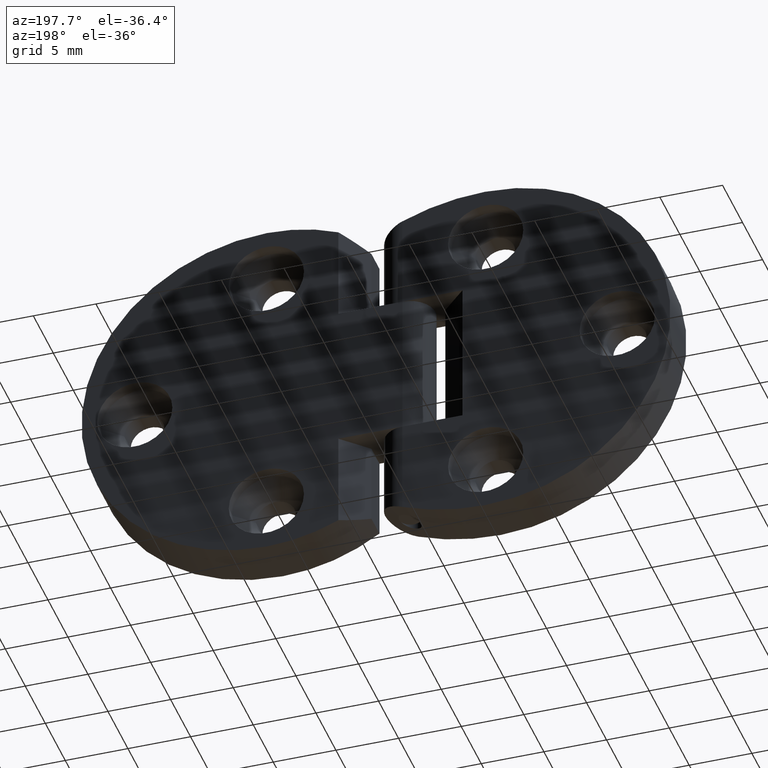
[diagram: clean part render]
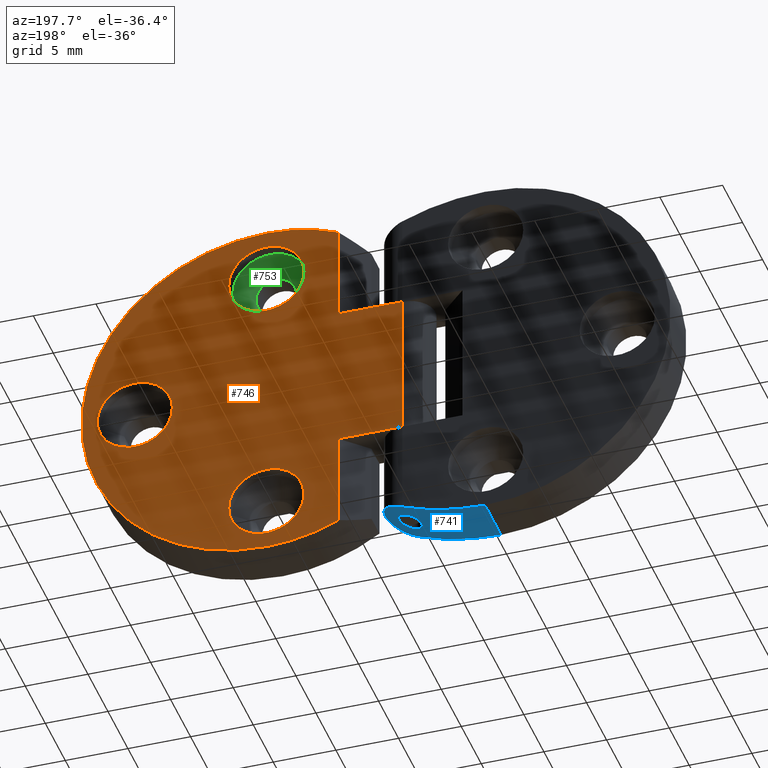
[diagram: same view with three faces highlighted in distinct colors, each labeled with its STEP entity id]
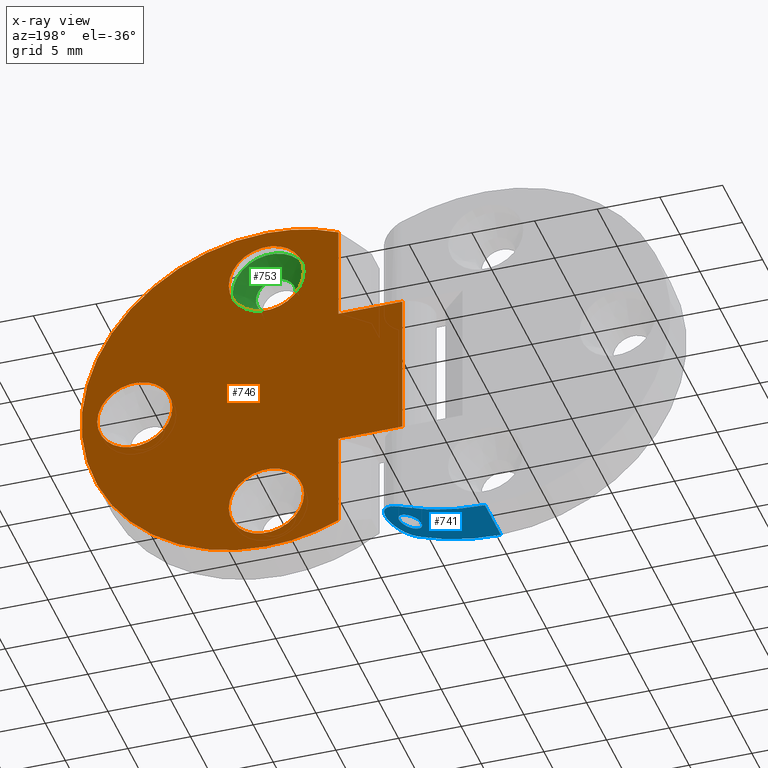
[diagram: x-ray of the same camera — body ghosted, the three highlighted faces saturated]
A machine part, auxiliary view with three faces highlighted in distinct colors.
The next image is the same camera in x-ray (body ghosted, the three faces saturated) — at least one of them is partly hidden behind the body in this view.
Their STEP definitions:

[orange] entity #746 — the highlighted planar face has unit normal (-0, 1, 0).
#90=FACE_BOUND('',#254,.T.);
#91=FACE_BOUND('',#255,.T.);
#92=FACE_BOUND('',#256,.T.);
#131=CIRCLE('',#821,14.0391304347826);
#133=CIRCLE('',#824,14.0391304347826);
#134=CIRCLE('',#825,14.8);
#135=CIRCLE('',#826,3.);
#136=CIRCLE('',#827,3.);
#137=CIRCLE('',#828,3.);
#185=FACE_OUTER_BOUND('',#253,.T.);
#253=EDGE_LOOP('',(#623,#624,#625,#626,#627,#628,#629,#630));
#254=EDGE_LOOP('',(#631));
#255=EDGE_LOOP('',(#632));
#256=EDGE_LOOP('',(#633));
#314=LINE('',#1326,#351);
#317=LINE('',#1337,#354);
#318=LINE('',#1339,#355);
#319=LINE('',#1341,#356);
#320=LINE('',#1343,#357);
#351=VECTOR('',#989,7.6908026657772);
#354=VECTOR('',#1000,5.1);
#355=VECTOR('',#1001,11.8);
#356=VECTOR('',#1002,5.1);
#357=VECTOR('',#1003,7.6908026657772);
#403=VERTEX_POINT('',#1319);
#406=VERTEX_POINT('',#1324);
#407=VERTEX_POINT('',#1328);
#410=VERTEX_POINT('',#1336);
#411=VERTEX_POINT('',#1338);
#412=VERTEX_POINT('',#1340);
#413=VERTEX_POINT('',#1342);
#414=VERTEX_POINT('',#1344);
#415=VERTEX_POINT('',#1347);
#416=VERTEX_POINT('',#1349);
#417=VERTEX_POINT('',#1351);
#485=EDGE_CURVE('',#406,#403,#314,.T.);
#486=EDGE_CURVE('',#407,#403,#131,.T.);
#490=EDGE_CURVE('',#406,#410,#317,.T.);
#491=EDGE_CURVE('',#411,#410,#318,.T.);
#492=EDGE_CURVE('',#411,#412,#319,.T.);
#493=EDGE_CURVE('',#413,#412,#320,.T.);
#494=EDGE_CURVE('',#413,#414,#133,.T.);
#495=EDGE_CURVE('',#414,#407,#134,.T.);
#496=EDGE_CURVE('',#415,#415,#135,.T.);
#497=EDGE_CURVE('',#416,#416,#136,.T.);
#498=EDGE_CURVE('',#417,#417,#137,.T.);
#623=ORIENTED_EDGE('',*,*,#485,.F.);
#624=ORIENTED_EDGE('',*,*,#490,.T.);
#625=ORIENTED_EDGE('',*,*,#491,.F.);
#626=ORIENTED_EDGE('',*,*,#492,.T.);
#627=ORIENTED_EDGE('',*,*,#493,.F.);
#628=ORIENTED_EDGE('',*,*,#494,.T.);
#629=ORIENTED_EDGE('',*,*,#495,.T.);
#630=ORIENTED_EDGE('',*,*,#486,.T.);
#631=ORIENTED_EDGE('',*,*,#496,.T.);
#632=ORIENTED_EDGE('',*,*,#497,.T.);
#633=ORIENTED_EDGE('',*,*,#498,.T.);
#713=PLANE('',#823);
#746=ADVANCED_FACE('',(#185,#90,#91,#92),#713,.T.);
#821=AXIS2_PLACEMENT_3D('',#1329,#992,#993);
#823=AXIS2_PLACEMENT_3D('',#1335,#998,#999);
#824=AXIS2_PLACEMENT_3D('',#1345,#1004,#1005);
#825=AXIS2_PLACEMENT_3D('',#1346,#1006,#1007);
#826=AXIS2_PLACEMENT_3D('',#1348,#1008,#1009);
#827=AXIS2_PLACEMENT_3D('',#1350,#1010,#1011);
#828=AXIS2_PLACEMENT_3D('',#1352,#1012,#1013);
#989=DIRECTION('',(0.,0.,1.));
#992=DIRECTION('center_axis',(0.,1.,0.));
#993=DIRECTION('ref_axis',(1.58161223700084E-16,0.,-1.));
#998=DIRECTION('center_axis',(0.,1.,0.));
#999=DIRECTION('ref_axis',(-1.,0.,0.));
#1000=DIRECTION('',(1.,0.,0.));
#1001=DIRECTION('',(0.,0.,1.));
#1002=DIRECTION('',(-1.,0.,0.));
#1003=DIRECTION('',(0.,0.,1.));
#1004=DIRECTION('center_axis',(0.,1.,0.));
#1005=DIRECTION('ref_axis',(-0.548467017652525,0.,0.836172189532362));
#1006=DIRECTION('center_axis',(0.,1.,0.));
#1007=DIRECTION('ref_axis',(1.50030138462859E-16,0.,1.));
#1008=DIRECTION('center_axis',(0.,-1.,0.));
#1009=DIRECTION('ref_axis',(1.,0.,7.50150692314295E-17));
#1010=DIRECTION('center_axis',(0.,-1.,0.));
#1011=DIRECTION('ref_axis',(1.,0.,7.50150692314295E-17));
#1012=DIRECTION('center_axis',(0.,-1.,0.));
#1013=DIRECTION('ref_axis',(1.,0.,7.50150692314295E-17));
#1319=CARTESIAN_POINT('',(-5.1,2.,13.5908026657772));
#1324=CARTESIAN_POINT('',(-5.1,2.,5.9));
#1326=CARTESIAN_POINT('',(-5.1,2.,6.25));
#1328=CARTESIAN_POINT('',(-10.8,2.,14.8));
#1329=CARTESIAN_POINT('Origin',(-10.8,2.,0.760869565217399));
#1335=CARTESIAN_POINT('Origin',(2.,2.,0.));
#1336=CARTESIAN_POINT('',(6.93889390390723E-16,2.,5.9));
#1337=CARTESIAN_POINT('',(-0.550000000000003,2.,5.9));
#1338=CARTESIAN_POINT('',(5.55111512312578E-16,2.,-5.9));
#1339=CARTESIAN_POINT('',(6.93889390390723E-16,2.,0.));
#1340=CARTESIAN_POINT('',(-5.1,2.,-5.9));
#1341=CARTESIAN_POINT('',(2.,2.,-5.9));
#1342=CARTESIAN_POINT('',(-5.1,2.,-13.5908026657772));
#1343=CARTESIAN_POINT('',(-5.1,2.,-2.95));
#1344=CARTESIAN_POINT('',(-10.8,2.,-14.8));
#1345=CARTESIAN_POINT('Origin',(-10.8,2.,-0.760869565217417));
#1346=CARTESIAN_POINT('Origin',(-10.8,2.,-4.44089209850063E-15));
#1347=CARTESIAN_POINT('',(-13.85,2.,10.5));
#1348=CARTESIAN_POINT('Origin',(-10.85,2.,10.5));
#1349=CARTESIAN_POINT('',(-13.85,2.,-10.5));
#1350=CARTESIAN_POINT('Origin',(-10.85,2.,-10.5));
#1351=CARTESIAN_POINT('',(-24.35,2.,-5.8247403263307E-15));
#1352=CARTESIAN_POINT('Origin',(-21.35,2.,-5.23230107889221E-15));

[blue] entity #741 — the highlighted cylindrical surface (partial cylindrical patch) has radius 17.2283 mm, axis along (0, -1, 0).
#41=B_SPLINE_CURVE_WITH_KNOTS('',3,(#1210,#1211,#1212,#1213,#1214,#1215,
#1216,#1217,#1218,#1219,#1220,#1221,#1222,#1223,#1224,#1225,#1226,#1227,
#1228),.UNSPECIFIED.,.F.,.F.,(4,2,2,2,3,2,2,2,4),(0.939767633364581,1.02354684123296,
1.10732604910133,1.18271250604964,1.25809896299795,1.33348541994626,1.40887187689457,
1.49265108476295,1.57643029263132),.UNSPECIFIED.);
#43=B_SPLINE_CURVE_WITH_KNOTS('',3,(#1281,#1282,#1283,#1284,#1285,#1286,
#1287,#1288,#1289,#1290,#1291,#1292,#1293,#1294,#1295,#1296,#1297,#1298,
#1299,#1300,#1301,#1302,#1303,#1304,#1305,#1306,#1307,#1308,#1309,#1310,
#1311,#1312,#1313,#1314),.UNSPECIFIED.,.T.,.F.,(4,2,2,2,2,2,2,2,2,2,2,2,
2,2,2,2,4),(0.,0.0337408916281188,0.0674817832562375,0.104020686505745,
0.140559589755253,0.177777884823905,0.214996179892556,0.248818065793606,
0.282639951694657,0.316461837595707,0.350283723496757,0.387502018565409,
0.42472031363406,0.461259216883568,0.497798120133076,0.531539011761195,
0.565279903389313),.UNSPECIFIED.);
#54=CYLINDRICAL_SURFACE('',#814,17.2282608695652);
#87=FACE_BOUND('',#246,.T.);
#125=CIRCLE('',#803,17.2282608695652);
#128=CIRCLE('',#809,17.2282608695652);
#180=FACE_OUTER_BOUND('',#245,.T.);
#245=EDGE_LOOP('',(#602,#603,#604,#605));
#246=EDGE_LOOP('',(#606));
#311=LINE('',#1278,#348);
#348=VECTOR('',#974,4.);
#393=VERTEX_POINT('',#1199);
#394=VERTEX_POINT('',#1201);
#397=VERTEX_POINT('',#1209);
#399=VERTEX_POINT('',#1235);
#402=VERTEX_POINT('',#1280);
#467=EDGE_CURVE('',#393,#394,#125,.T.);
#471=EDGE_CURVE('',#394,#397,#41,.T.);
#475=EDGE_CURVE('',#397,#399,#128,.T.);
#480=EDGE_CURVE('',#393,#399,#311,.T.);
#481=EDGE_CURVE('',#402,#402,#43,.T.);
#602=ORIENTED_EDGE('',*,*,#471,.F.);
#603=ORIENTED_EDGE('',*,*,#467,.F.);
#604=ORIENTED_EDGE('',*,*,#480,.T.);
#605=ORIENTED_EDGE('',*,*,#475,.F.);
#606=ORIENTED_EDGE('',*,*,#481,.F.);
#741=ADVANCED_FACE('',(#180,#87),#54,.T.);
#803=AXIS2_PLACEMENT_3D('',#1202,#947,#948);
#809=AXIS2_PLACEMENT_3D('',#1236,#963,#964);
#814=AXIS2_PLACEMENT_3D('',#1279,#975,#976);
#947=DIRECTION('center_axis',(0.,-1.,0.));
#948=DIRECTION('ref_axis',(-0.499179810725553,0.,0.866498422712933));
#963=DIRECTION('center_axis',(0.,1.,0.));
#964=DIRECTION('ref_axis',(-0.499179810725553,0.,0.866498422712933));
#974=DIRECTION('',(0.,1.,0.));
#975=DIRECTION('center_axis',(0.,-1.,0.));
#976=DIRECTION('ref_axis',(0.258361739898797,0.,-0.966048244838976));
#1199=CARTESIAN_POINT('',(-6.59999999999999,-2.,-14.8));
#1201=CARTESIAN_POINT('',(0.,-2.,-13.4856629894267));
#1202=CARTESIAN_POINT('Origin',(-6.59999999999999,-2.,2.42826086956519));
#1209=CARTESIAN_POINT('',(0.,2.,-13.4856629894267));
#1210=CARTESIAN_POINT('Ctrl Pts',(3.46944695195361E-17,-2.,-13.4856629894267));
#1211=CARTESIAN_POINT('Ctrl Pts',(0.257959087315516,-2.,-13.3786793195683));
#1212=CARTESIAN_POINT('Ctrl Pts',(0.531045860595354,-1.94738956370216,-13.257346879197));
#1213=CARTESIAN_POINT('Ctrl Pts',(1.03292877941716,-1.73418392129007,-13.0193442449194));
#1214=CARTESIAN_POINT('Ctrl Pts',(1.26188778447615,-1.5736708062723,-12.9029440508202));
#1215=CARTESIAN_POINT('Ctrl Pts',(1.60681657943017,-1.21402101964246,-12.7208402031118));
#1216=CARTESIAN_POINT('Ctrl Pts',(1.75295608628397,-0.997355613319973,-12.6400448241367));
#1217=CARTESIAN_POINT('Ctrl Pts',(1.9496673344188,-0.51611054238491,-12.5293091418157));
#1218=CARTESIAN_POINT('Ctrl Pts',(2.,-0.251288189827696,-12.5));
#1219=CARTESIAN_POINT('Ctrl Pts',(2.,0.,-12.5));
#1220=CARTESIAN_POINT('Ctrl Pts',(2.,0.251288189827696,-12.5));
#1221=CARTESIAN_POINT('Ctrl Pts',(1.9496673344188,0.51611054238491,-12.5293091418157));
#1222=CARTESIAN_POINT('Ctrl Pts',(1.75295608628397,0.997355613319973,-12.6400448241367));
#1223=CARTESIAN_POINT('Ctrl Pts',(1.60681657943017,1.21402101964246,-12.7208402031118));
#1224=CARTESIAN_POINT('Ctrl Pts',(1.26188778447615,1.5736708062723,-12.9029440508202));
#1225=CARTESIAN_POINT('Ctrl Pts',(1.03292877941716,1.73418392129007,-13.0193442449194));
#1226=CARTESIAN_POINT('Ctrl Pts',(0.531045860595354,1.94738956370216,-13.257346879197));
#1227=CARTESIAN_POINT('Ctrl Pts',(0.257959087315516,2.,-13.3786793195683));
#1228=CARTESIAN_POINT('Ctrl Pts',(2.94902990916057E-16,2.,-13.4856629894267));
#1235=CARTESIAN_POINT('',(-6.59999999999999,2.,-14.8));
#1236=CARTESIAN_POINT('Origin',(-6.59999999999999,2.,2.42826086956519));
#1278=CARTESIAN_POINT('',(-6.59999999999999,2.,-14.8));
#1279=CARTESIAN_POINT('Origin',(-6.59999999999999,2.,2.42826086956519));
#1280=CARTESIAN_POINT('',(-0.9,0.,-13.8297516962373));
#1281=CARTESIAN_POINT('Ctrl Pts',(-0.9,3.46944695195361E-17,-13.8297516962373));
#1282=CARTESIAN_POINT('Ctrl Pts',(-0.9,0.112469638760396,-13.8297516962373));
#1283=CARTESIAN_POINT('Ctrl Pts',(-0.877584211429414,0.231966625503829,
-13.8219450221635));
#1284=CARTESIAN_POINT('Ctrl Pts',(-0.787963016013239,0.450640459983937,
-13.7901071155615));
#1285=CARTESIAN_POINT('Ctrl Pts',(-0.720802496145735,0.549826819723638,
-13.7660149072084));
#1286=CARTESIAN_POINT('Ctrl Pts',(-0.562514007860336,0.712385661986284,
-13.7077060053617));
#1287=CARTESIAN_POINT('Ctrl Pts',(-0.458708546986161,0.783865045934931,
-13.6686982420638));
#1288=CARTESIAN_POINT('Ctrl Pts',(-0.233679604446852,0.877639888681628,
-13.5810338676241));
#1289=CARTESIAN_POINT('Ctrl Pts',(-0.112504550634583,0.9,-13.5323221314942));
#1290=CARTESIAN_POINT('Ctrl Pts',(0.114596421613731,0.9,-13.4381362832949));
#1291=CARTESIAN_POINT('Ctrl Pts',(0.23677050174186,0.876878318084573,-13.3858698370798));
#1292=CARTESIAN_POINT('Ctrl Pts',(0.462309283350968,0.781822213679544,-13.2864439793061));
#1293=CARTESIAN_POINT('Ctrl Pts',(0.565698245366913,0.709880945920938,-13.2393461561851));
#1294=CARTESIAN_POINT('Ctrl Pts',(0.722203598451446,0.54766625989138,-13.166772085172));
#1295=CARTESIAN_POINT('Ctrl Pts',(0.78853658343146,0.449451884878174,-13.1353161486103));
#1296=CARTESIAN_POINT('Ctrl Pts',(0.877476206646237,0.232018131555088,-13.0927813649446));
#1297=CARTESIAN_POINT('Ctrl Pts',(0.900000000000001,0.112739619670168,-13.0818317346004));
#1298=CARTESIAN_POINT('Ctrl Pts',(0.900000000000001,-0.112739619670168,
-13.0818317346004));
#1299=CARTESIAN_POINT('Ctrl Pts',(0.877476206646237,-0.232018131555087,
-13.0927813649446));
#1300=CARTESIAN_POINT('Ctrl Pts',(0.78853658343146,-0.449451884878173,-13.1353161486103));
#1301=CARTESIAN_POINT('Ctrl Pts',(0.722203598451447,-0.54766625989138,-13.166772085172));
#1302=CARTESIAN_POINT('Ctrl Pts',(0.565698245366913,-0.709880945920938,
-13.2393461561851));
#1303=CARTESIAN_POINT('Ctrl Pts',(0.462309283350968,-0.781822213679544,
-13.2864439793061));
#1304=CARTESIAN_POINT('Ctrl Pts',(0.23677050174186,-0.876878318084573,-13.3858698370798));
#1305=CARTESIAN_POINT('Ctrl Pts',(0.114596421613731,-0.9,-13.4381362832949));
#1306=CARTESIAN_POINT('Ctrl Pts',(-0.112504550634583,-0.9,-13.5323221314942));
#1307=CARTESIAN_POINT('Ctrl Pts',(-0.233679604446852,-0.877639888681628,
-13.5810338676241));
#1308=CARTESIAN_POINT('Ctrl Pts',(-0.458708546986161,-0.783865045934931,
-13.6686982420637));
#1309=CARTESIAN_POINT('Ctrl Pts',(-0.562514007860336,-0.712385661986284,
-13.7077060053617));
#1310=CARTESIAN_POINT('Ctrl Pts',(-0.720802496145735,-0.549826819723638,
-13.7660149072084));
#1311=CARTESIAN_POINT('Ctrl Pts',(-0.787963016013239,-0.450640459983937,
-13.7901071155615));
#1312=CARTESIAN_POINT('Ctrl Pts',(-0.877584211429414,-0.231966625503829,
-13.8219450221635));
#1313=CARTESIAN_POINT('Ctrl Pts',(-0.9,-0.112469638760396,-13.8297516962373));
#1314=CARTESIAN_POINT('Ctrl Pts',(-0.9,0.,-13.8297516962373));

[green] entity #753 — the highlighted conical surface has half-angle 45 deg.
#97=FACE_BOUND('',#268,.T.);
#145=CIRCLE('',#844,1.6);
#146=CIRCLE('',#845,3.);
#160=CONICAL_SURFACE('',#843,2.3,0.785398163397448);
#192=FACE_OUTER_BOUND('',#267,.T.);
#267=EDGE_LOOP('',(#651));
#268=EDGE_LOOP('',(#652));
#428=VERTEX_POINT('',#1382);
#429=VERTEX_POINT('',#1384);
#511=EDGE_CURVE('',#428,#428,#145,.T.);
#512=EDGE_CURVE('',#429,#429,#146,.T.);
#651=ORIENTED_EDGE('',*,*,#511,.F.);
#652=ORIENTED_EDGE('',*,*,#512,.F.);
#753=ADVANCED_FACE('',(#192,#97),#160,.F.);
#843=AXIS2_PLACEMENT_3D('',#1381,#1046,#1047);
#844=AXIS2_PLACEMENT_3D('',#1383,#1048,#1049);
#845=AXIS2_PLACEMENT_3D('',#1385,#1050,#1051);
#1046=DIRECTION('center_axis',(0.,1.,0.));
#1047=DIRECTION('ref_axis',(1.,0.,0.));
#1048=DIRECTION('center_axis',(0.,1.,0.));
#1049=DIRECTION('ref_axis',(1.,0.,0.));
#1050=DIRECTION('center_axis',(0.,-1.,0.));
#1051=DIRECTION('ref_axis',(1.,0.,7.50150692314295E-17));
#1381=CARTESIAN_POINT('Origin',(-10.85,0.3,-10.5));
#1382=CARTESIAN_POINT('',(-12.45,-0.399999999999999,-10.5));
#1383=CARTESIAN_POINT('Origin',(-10.85,-0.399999999999997,-10.5));
#1384=CARTESIAN_POINT('',(-13.85,1.,-10.5));
#1385=CARTESIAN_POINT('Origin',(-10.85,1.,-10.5));